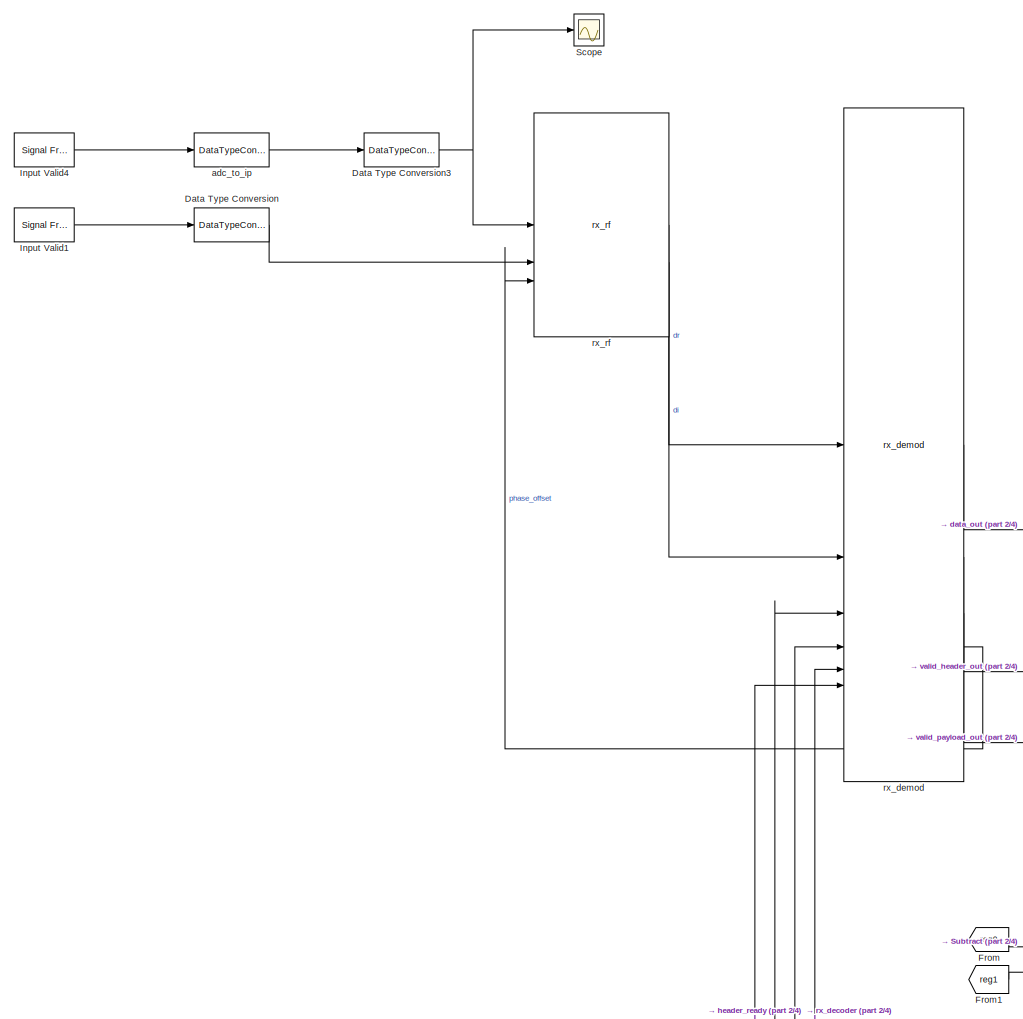
[diagram: root canvas - part 1/4, left side, full height]
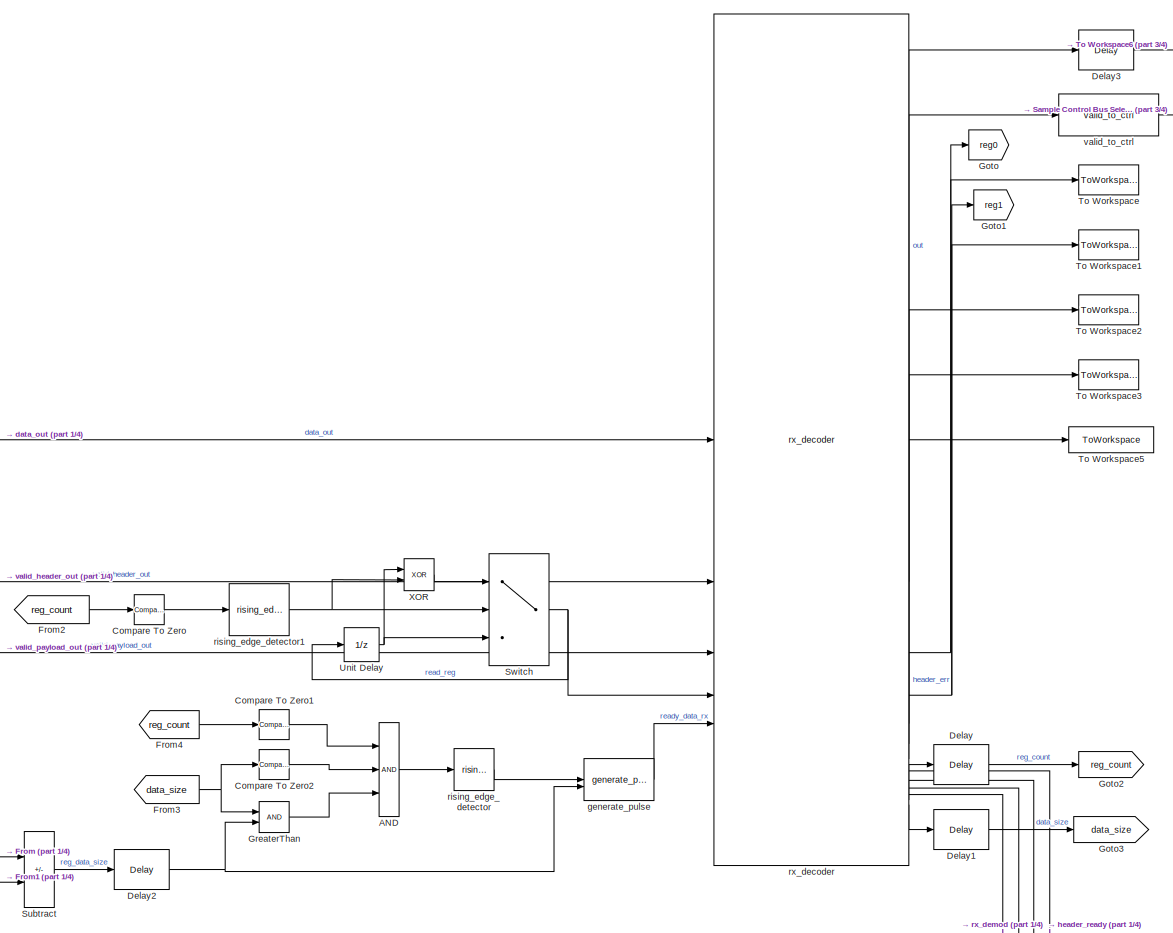
[diagram: root canvas - part 2/4, central region]
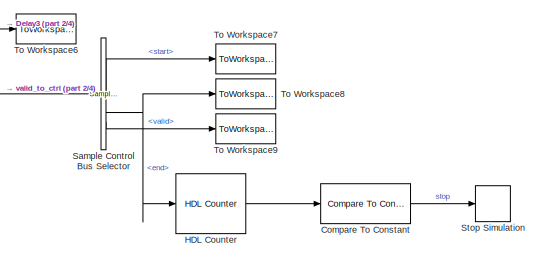
[diagram: root canvas - part 3/4, top right region]
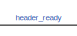
[diagram: root canvas - part 4/4, bottom center region]
MODEL slx_9928e0394075
KIND model
CONFIG AbsTol = auto
CONFIG EnableMultiTasking = off
CONFIG FixedStep = auto
CONFIG MaxStep = auto
CONFIG MinStep = auto
CONFIG RelTol = 1e-3
CONFIG SampleTimeConstraint = Unconstrained
CONFIG SolverName = FixedStepDiscrete
CONFIG StartTime = 0.0
CONFIG StopTime = stopTime
BLOCK [Logic] AND
  AllPortsSameDT = off
  IconShape = distinctive
  Inputs = 3
  OutDataTypeStr = boolean
BLOCK [Reference] Compare To Constant  REF=hdlsllib/Logic and Bit
Operations/Compare
To Constant
  SourceBlock = hdlsllib/Logic and Bit\nOperations/Compare\nTo Constant
  SourceType = Compare To Constant
BLOCK [Reference] Compare To Zero  REF=hdlsllib/Logic and Bit
Operations/Compare
To Zero
  SourceBlock = hdlsllib/Logic and Bit\nOperations/Compare\nTo Zero
  SourceType = Compare To Zero
BLOCK [Reference] Compare To Zero1  REF=hdlsllib/Logic and Bit
Operations/Compare
To Zero
  SourceBlock = hdlsllib/Logic and Bit\nOperations/Compare\nTo Zero
  SourceType = Compare To Zero
BLOCK [Reference] Compare To Zero2  REF=hdlsllib/Logic and Bit
Operations/Compare
To Zero
  SourceBlock = hdlsllib/Logic and Bit\nOperations/Compare\nTo Zero
  SourceType = Compare To Zero
BLOCK [DataTypeConversion] Data Type Conversion
  OutDataTypeStr = boolean
  RndMeth = Floor
  SaturateOnIntegerOverflow = off
BLOCK [DataTypeConversion] Data Type Conversion3
  ConvertRealWorld = Stored Integer (SI)
  OutDataTypeStr = int16
  RndMeth = Floor
  SaturateOnIntegerOverflow = off
BLOCK [Delay] Delay
  DelayLength = 1
  InitialCondition = 0
  InputPortMap = u0
  UseCircularBuffer = on
  UserDataPersistent = on
BLOCK [Delay] Delay1
  DelayLength = 1
  InitialCondition = 0
  InputPortMap = u0
  UseCircularBuffer = on
  UserDataPersistent = on
BLOCK [Delay] Delay2
  DelayLength = 1
  InitialCondition = 0
  InputPortMap = u0
  UseCircularBuffer = on
  UserDataPersistent = on
BLOCK [Delay] Delay3
  DelayLength = 1
  InitialCondition = 0
  InputPortMap = u0
  UseCircularBuffer = on
  UserDataPersistent = on
BLOCK [From] From
  GotoTag = reg0
BLOCK [From] From1
  GotoTag = reg1
BLOCK [From] From2
  GotoTag = reg_count
BLOCK [From] From3
  GotoTag = data_size
BLOCK [From] From4
  GotoTag = reg_count
BLOCK [Goto] Goto
  GotoTag = reg0
BLOCK [Goto] Goto1
  GotoTag = reg1
BLOCK [Goto] Goto2
  GotoTag = reg_count
BLOCK [Goto] Goto3
  GotoTag = data_size
BLOCK [RelationalOperator] GreaterThan
  InputSameDT = off
  OutDataTypeStr = boolean
  RndMeth = Simplest
BLOCK [Reference] HDL Counter  REF=hdlsllib/Sources/HDL Counter
  SourceBlock = hdlsllib/Sources/HDL Counter
  SourceType = HDL Counter
BLOCK [Reference] Input Valid1  REF=dspsrcs4/Signal From
Workspace
  SourceBlock = dspsrcs4/Signal From\nWorkspace
  SourceType = Signal From Workspace
BLOCK [Reference] Input Valid4  REF=dspsrcs4/Signal From
Workspace
  SourceBlock = dspsrcs4/Signal From\nWorkspace
  SourceType = Signal From Workspace
BLOCK [Reference] Sample Control Bus Selector  REF=whdlutilities/Sample Control
Bus Selector
  SourceBlock = whdlutilities/Sample Control\nBus Selector
BLOCK [Scope] Scope
  Floating = off
  NumInputPorts = 1
  ScopeSpecificationString = Simulink.scopes.TimeScopeBlockCfg('CurrentConfiguration', extmgr.ConfigurationSet(extmgr.Configuration('Core','General UI',true),extmgr.Configuration('Core','Source UI',true),extmgr.Configuration('Sources','WiredSimulink',true,'DataLoggingSaveFormat','Array','DataLoggingDecimation','1'),extmgr.Configuration('Visuals','Time Domain',true,'SerializedDisplays',{struct('MinYLimReal','-2754.75','MaxYLim...<+2024ch>
BLOCK [Stop] Stop Simulation
BLOCK [Sum] Subtract
  IconShape = rectangular
  Inputs = +-
BLOCK [Switch] Switch
  Criteria = u2 ~= 0
  InputSameDT = off
  SaturateOnIntegerOverflow = off
BLOCK [ToWorkspace] To Workspace
  MaxDataPoints = inf
  SampleTime = 1/CONST.fs
  Save2DSignal = 2-D array (concatenate along first dimension)
  VariableName = reg0Out
BLOCK [ToWorkspace] To Workspace1
  MaxDataPoints = inf
  SampleTime = 1/CONST.fs
  Save2DSignal = 2-D array (concatenate along first dimension)
  VariableName = reg1Out
BLOCK [ToWorkspace] To Workspace2
  MaxDataPoints = inf
  SampleTime = 1/CONST.fs
  Save2DSignal = 2-D array (concatenate along first dimension)
  VariableName = reg2Out
BLOCK [ToWorkspace] To Workspace3
  MaxDataPoints = inf
  SampleTime = 1/CONST.fs
  Save2DSignal = 2-D array (concatenate along first dimension)
  VariableName = reg3Out
BLOCK [ToWorkspace] To Workspace5
  MaxDataPoints = inf
  SampleTime = 1/CONST.fs
  Save2DSignal = 2-D array (concatenate along first dimension)
  VariableName = headerErrOut
BLOCK [ToWorkspace] To Workspace6
  MaxDataPoints = inf
  SampleTime = 1/CONST.fs
  Save2DSignal = 2-D array (concatenate along first dimension)
  VariableName = dataOut
BLOCK [ToWorkspace] To Workspace7
  MaxDataPoints = inf
  SampleTime = 1/CONST.fs
  Save2DSignal = 2-D array (concatenate along first dimension)
  VariableName = startOut
BLOCK [ToWorkspace] To Workspace8
  MaxDataPoints = inf
  SampleTime = 1/CONST.fs
  Save2DSignal = 2-D array (concatenate along first dimension)
  VariableName = endOut
BLOCK [ToWorkspace] To Workspace9
  MaxDataPoints = inf
  SampleTime = 1/CONST.fs
  Save2DSignal = 2-D array (concatenate along first dimension)
  VariableName = validOut
BLOCK [UnitDelay] Unit Delay
  HasFrameUpgradeWarning = on
  SampleTime = -1
BLOCK [Logic] XOR
  AllPortsSameDT = off
  IconShape = distinctive
  Operator = XOR
  OutDataTypeStr = boolean
BLOCK [DataTypeConversion] adc_to_ip
  OutDataTypeStr = CONST.ADCDataType
  RndMeth = Floor
  SaturateOnIntegerOverflow = off
BLOCK [Reference] generate_pulse  REF=HDL_ieee_8021513/generate_pulse
  SourceBlock = HDL_ieee_8021513/generate_pulse
  SourceProductName = HDL IEEE 8021513
  SourceType = SubSystem
BLOCK [Reference] rising_edge_detector  REF=HDL_ieee_8021513/rising_edge_detector
  SourceBlock = HDL_ieee_8021513/rising_edge_detector
  SourceProductName = HDL IEEE 8021513
  SourceType = SubSystem
BLOCK [Reference] rising_edge_detector1  REF=HDL_ieee_8021513/rising_edge_detector
  SourceBlock = HDL_ieee_8021513/rising_edge_detector
  SourceProductName = HDL IEEE 8021513
  SourceType = SubSystem
BLOCK [Reference] rx_decoder  REF=HDL_ieee_8021513/rx_decoder
  SourceBlock = HDL_ieee_8021513/rx_decoder
  SourceProductName = HDL IEEE 8021513
  SourceType = SubSystem
BLOCK [Reference] rx_demod  REF=HDL_ieee_8021513/rx_demod
  SourceBlock = HDL_ieee_8021513/rx_demod
  SourceProductName = HDL IEEE 8021513
  SourceType = SubSystem
BLOCK [Reference] rx_rf  REF=HDL_ieee_8021513/rx_rf
  SourceBlock = HDL_ieee_8021513/rx_rf
  SourceProductName = HDL IEEE 8021513
  SourceType = SubSystem
BLOCK [Reference] valid_to_ctrl  REF=HDL_ieee_8021513/valid_to_ctrl
  SourceBlock = HDL_ieee_8021513/valid_to_ctrl
  SourceProductName = HDL IEEE 8021513
  SourceType = SubSystem
LINE AND:1 -> rising_edge_detector:1
LINE Compare To Constant:1 -> Stop Simulation:1
LINE Compare To Zero1:1 -> AND:1
LINE Compare To Zero2:1 -> AND:2
LINE Compare To Zero:1 -> rising_edge_detector1:1
NET Data Type Conversion3:1 -> Scope:1, rx_rf:1
LINE Data Type Conversion:1 -> rx_rf:2
LINE Delay1:1 -> Goto3:1
NET Delay2:1 -> GreaterThan:2, generate_pulse:2
LINE Delay3:1 -> To Workspace6:1
LINE Delay:1 -> Goto2:1
LINE From1:1 -> Subtract:2
LINE From2:1 -> Compare To Zero:1
NET From3:1 -> Compare To Zero2:1, GreaterThan:1
LINE From4:1 -> Compare To Zero1:1
LINE From:1 -> Subtract:1
LINE GreaterThan:1 -> AND:3
LINE HDL Counter:1 -> Compare To Constant:1
LINE Input Valid1:1 -> Data Type Conversion:1
LINE Input Valid4:1 -> adc_to_ip:1
LINE Sample Control Bus Selector:1 -> To Workspace7:1
NET Sample Control Bus Selector:2 -> HDL Counter:1, To Workspace8:1
LINE Sample Control Bus Selector:3 -> To Workspace9:1
LINE Subtract:1 -> Delay2:1
NET Switch:1 -> Unit Delay:1, rx_decoder:4
NET Unit Delay:1 -> Switch:3, XOR:1
LINE XOR:1 -> Switch:1
LINE adc_to_ip:1 -> Data Type Conversion3:1
LINE generate_pulse:1 -> rx_decoder:5
NET rising_edge_detector1:1 -> Switch:2, XOR:2
LINE rising_edge_detector:1 -> generate_pulse:1
LINE rx_decoder:1 -> Delay3:1
LINE rx_decoder:10 -> rx_demod:4
LINE rx_decoder:11 -> rx_demod:5
LINE rx_decoder:12 -> Delay:1
LINE rx_decoder:13 -> Delay1:1
LINE rx_decoder:2 -> valid_to_ctrl:1
NET rx_decoder:3 -> Goto:1, To Workspace:1
NET rx_decoder:4 -> Goto1:1, To Workspace1:1
LINE rx_decoder:5 -> To Workspace2:1
LINE rx_decoder:6 -> To Workspace3:1
LINE rx_decoder:7 -> To Workspace5:1
LINE rx_decoder:8 -> rx_demod:6
LINE rx_decoder:9 -> rx_demod:3
LINE rx_demod:1 -> rx_decoder:1
LINE rx_demod:2 -> rx_decoder:2
LINE rx_demod:3 -> rx_decoder:3
LINE rx_demod:4 -> rx_rf:3
LINE rx_rf:1 -> rx_demod:1
LINE rx_rf:2 -> rx_demod:2
LINE valid_to_ctrl:1 -> Sample Control Bus Selector:1
note: NET lines group one-source signal fan-out (src -> all destinations, sorted); 1:1 wires keep LINE
